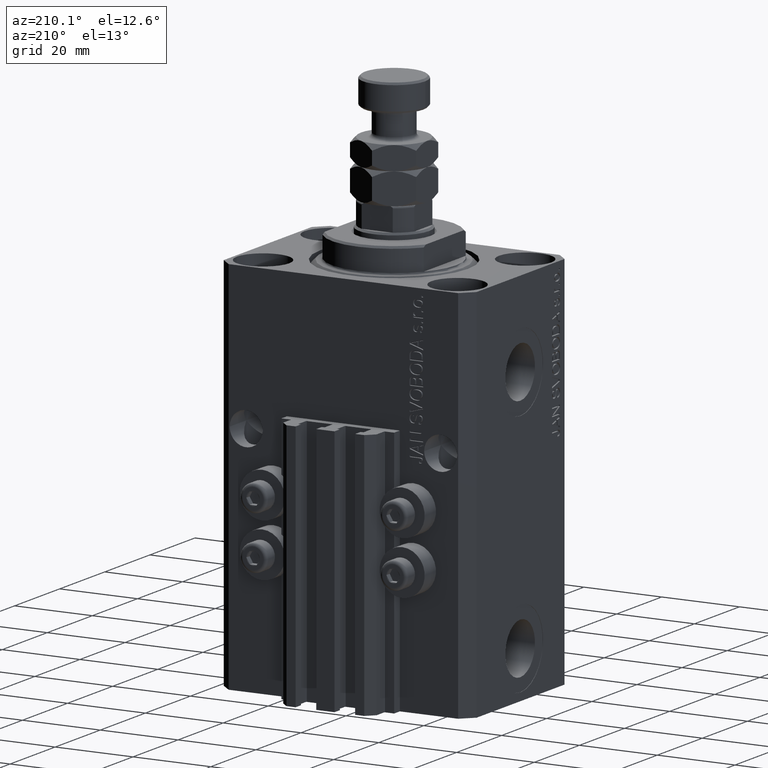
[diagram: clean part render]
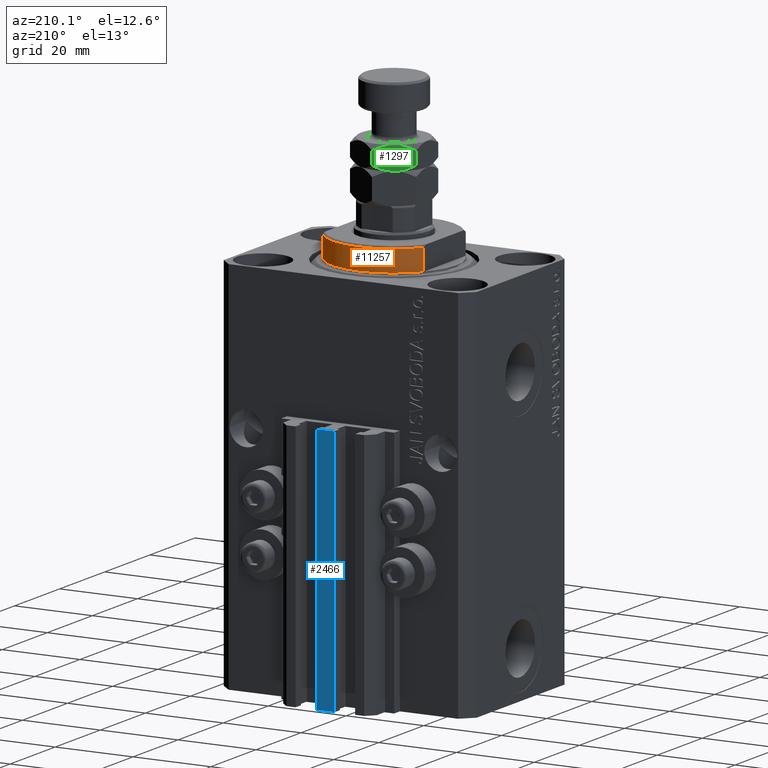
[diagram: same view with three faces highlighted in distinct colors, each labeled with its STEP entity id]
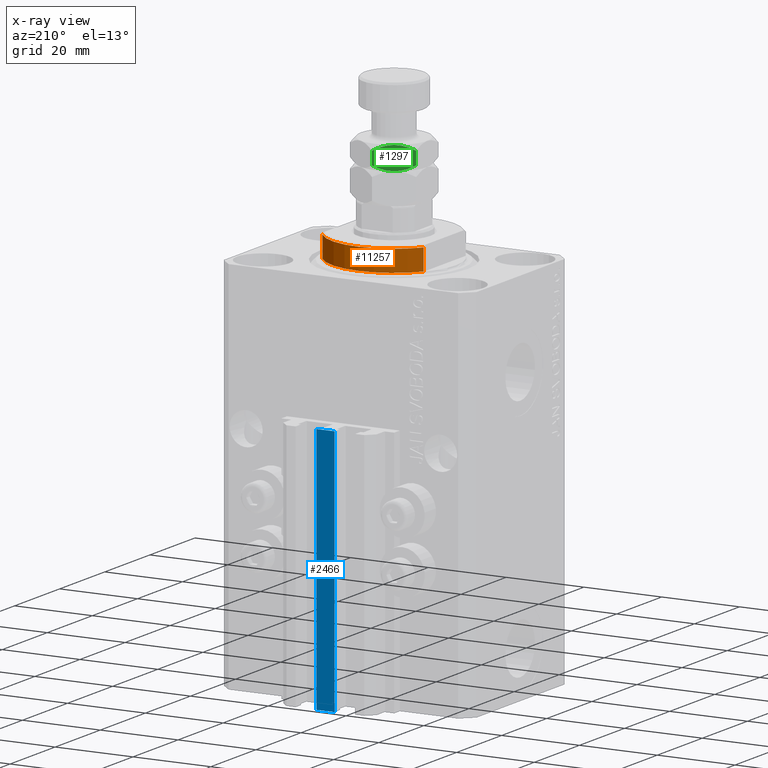
[diagram: x-ray of the same camera — body ghosted, the three highlighted faces saturated]
A machine part, auxiliary view with three faces highlighted in distinct colors.
The next image is the same camera in x-ray (body ghosted, the three faces saturated) — at least one of them is partly hidden behind the body in this view.
Their STEP definitions:

[orange] entity #11257 — the highlighted cylindrical surface (partial cylindrical patch) has radius 16 mm, axis along (0, 0, -1).
#420 = VERTEX_POINT ( 'NONE', #6584 ) ;
#3808 = CIRCLE ( 'NONE', #45608, 16.00000000000000000 ) ;
#4153 = CARTESIAN_POINT ( 'NONE',  ( -13.00000000000000000, 9.327379053088813876, -6.500000000000000000 ) ) ;
#4670 = CARTESIAN_POINT ( 'NONE',  ( -13.00000000000000000, 9.327379053088815652, -0.4999999999999995559 ) ) ;
#5188 = EDGE_CURVE ( 'NONE', #44451, #10162, #3808, .T. ) ;
#6218 = CARTESIAN_POINT ( 'NONE',  ( 13.00000000000000000, 9.327379053088916905, -6.000000000000014211 ) ) ;
#6584 = CARTESIAN_POINT ( 'NONE',  ( -13.00000000000000000, 9.327379053088916905, -6.000000000000014211 ) ) ;
#9665 = CIRCLE ( 'NONE', #45928, 16.00000000000000000 ) ;
#10162 = VERTEX_POINT ( 'NONE', #45714 ) ;
#10402 = FACE_OUTER_BOUND ( 'NONE', #31679, .T. ) ;
#11249 = VERTEX_POINT ( 'NONE', #6218 ) ;
#11257 = ADVANCED_FACE ( 'NONE', ( #10402 ), #25474, .T. ) ;
#12043 = DIRECTION ( 'NONE',  ( -0.000000000000000000, -0.000000000000000000, 1.000000000000000000 ) ) ;
#17253 = VECTOR ( 'NONE', #12043, 1000.000000000000000 ) ;
#18053 = DIRECTION ( 'NONE',  ( -0.000000000000000000, -0.000000000000000000, 1.000000000000000000 ) ) ;
#20066 = LINE ( 'NONE', #42528, #21469 ) ;
#20761 = EDGE_CURVE ( 'NONE', #11249, #10162, #20066, .T. ) ;
#21469 = VECTOR ( 'NONE', #42775, 1000.000000000000000 ) ;
#22242 = DIRECTION ( 'NONE',  ( 1.000000000000000000, 0.000000000000000000, 0.000000000000000000 ) ) ;
#22471 = EDGE_CURVE ( 'NONE', #11249, #420, #9665, .T. ) ;
#25474 = CYLINDRICAL_SURFACE ( 'NONE', #45030, 16.00000000000000000 ) ;
#26399 = ORIENTED_EDGE ( 'NONE', *, *, #40023, .T. ) ;
#27686 = DIRECTION ( 'NONE',  ( 0.000000000000000000, 0.000000000000000000, 1.000000000000000000 ) ) ;
#27939 = CARTESIAN_POINT ( 'NONE',  ( 0.000000000000000000, 0.000000000000000000, -6.000000000000023981 ) ) ;
#30498 = ORIENTED_EDGE ( 'NONE', *, *, #20761, .F. ) ;
#30636 = DIRECTION ( 'NONE',  ( 1.000000000000000000, -8.881784197001252323E-16, 0.000000000000000000 ) ) ;
#31679 = EDGE_LOOP ( 'NONE', ( #30498, #41690, #26399, #33000 ) ) ;
#33000 = ORIENTED_EDGE ( 'NONE', *, *, #5188, .T. ) ;
#33601 = DIRECTION ( 'NONE',  ( -0.000000000000000000, -0.000000000000000000, -1.000000000000000000 ) ) ;
#36580 = CARTESIAN_POINT ( 'NONE',  ( 0.000000000000000000, 0.000000000000000000, -6.500000000000000000 ) ) ;
#40023 = EDGE_CURVE ( 'NONE', #420, #44451, #41673, .T. ) ;
#41673 = LINE ( 'NONE', #4153, #17253 ) ;
#41690 = ORIENTED_EDGE ( 'NONE', *, *, #22471, .T. ) ;
#41726 = CARTESIAN_POINT ( 'NONE',  ( 0.000000000000000000, 0.000000000000000000, -0.4999999999999995559 ) ) ;
#42528 = CARTESIAN_POINT ( 'NONE',  ( 13.00000000000000000, 9.327379053088813876, -6.500000000000000000 ) ) ;
#42775 = DIRECTION ( 'NONE',  ( -0.000000000000000000, -0.000000000000000000, 1.000000000000000000 ) ) ;
#42980 = DIRECTION ( 'NONE',  ( -1.000000000000000000, 0.000000000000000000, 0.000000000000000000 ) ) ;
#44451 = VERTEX_POINT ( 'NONE', #4670 ) ;
#45030 = AXIS2_PLACEMENT_3D ( 'NONE', #36580, #18053, #22242 ) ;
#45608 = AXIS2_PLACEMENT_3D ( 'NONE', #41726, #33601, #30636 ) ;
#45714 = CARTESIAN_POINT ( 'NONE',  ( 13.00000000000000000, 9.327379053088815652, -0.4999999999999995559 ) ) ;
#45928 = AXIS2_PLACEMENT_3D ( 'NONE', #27939, #27686, #42980 ) ;

[blue] entity #2466 — the highlighted planar face has unit normal (0, -1, 0).
#890 = VECTOR ( 'NONE', #43488, 1000.000000000000000 ) ;
#962 = CARTESIAN_POINT ( 'NONE',  ( 2.349999999999999645, 30.49999999999949907, -33.00000000000000000 ) ) ;
#1634 = VERTEX_POINT ( 'NONE', #962 ) ;
#2256 = CARTESIAN_POINT ( 'NONE',  ( 2.349999999999999645, 30.49999999999949907, -97.00000000000000000 ) ) ;
#2466 = ADVANCED_FACE ( 'NONE', ( #22067 ), #34175, .F. ) ;
#4085 = VECTOR ( 'NONE', #10238, 1000.000000000000000 ) ;
#4772 = VERTEX_POINT ( 'NONE', #2256 ) ;
#5197 = ORIENTED_EDGE ( 'NONE', *, *, #47233, .F. ) ;
#5631 = CARTESIAN_POINT ( 'NONE',  ( -2.350000000000003197, 30.49999999999949907, -97.00000000000000000 ) ) ;
#7537 = VECTOR ( 'NONE', #41720, 1000.000000000000000 ) ;
#9227 = ORIENTED_EDGE ( 'NONE', *, *, #12739, .T. ) ;
#10238 = DIRECTION ( 'NONE',  ( 0.000000000000000000, 0.000000000000000000, 1.000000000000000000 ) ) ;
#11164 = EDGE_CURVE ( 'NONE', #23238, #1634, #28442, .T. ) ;
#12739 = EDGE_CURVE ( 'NONE', #26710, #23238, #39438, .T. ) ;
#18864 = DIRECTION ( 'NONE',  ( 0.000000000000000000, -1.000000000000000000, 0.000000000000000000 ) ) ;
#19739 = LINE ( 'NONE', #30870, #7537 ) ;
#19781 = EDGE_LOOP ( 'NONE', ( #21950, #5197, #36456, #9227 ) ) ;
#21950 = ORIENTED_EDGE ( 'NONE', *, *, #11164, .T. ) ;
#22067 = FACE_OUTER_BOUND ( 'NONE', #19781, .T. ) ;
#23238 = VERTEX_POINT ( 'NONE', #26298 ) ;
#26298 = CARTESIAN_POINT ( 'NONE',  ( -2.350000000000003197, 30.49999999999949907, -33.00000000000000000 ) ) ;
#26525 = CARTESIAN_POINT ( 'NONE',  ( -2.350000000000003197, 30.49999999999949907, -97.00000000000000000 ) ) ;
#26710 = VERTEX_POINT ( 'NONE', #28224 ) ;
#28224 = CARTESIAN_POINT ( 'NONE',  ( -2.350000000000003197, 30.49999999999949907, -97.00000000000000000 ) ) ;
#28442 = LINE ( 'NONE', #43007, #890 ) ;
#29502 = CARTESIAN_POINT ( 'NONE',  ( 2.349999999999999645, 30.49999999999949907, -97.00000000000000000 ) ) ;
#30870 = CARTESIAN_POINT ( 'NONE',  ( -2.350000000000003197, 30.49999999999949907, -97.00000000000000000 ) ) ;
#31561 = DIRECTION ( 'NONE',  ( 0.000000000000000000, 0.000000000000000000, 1.000000000000000000 ) ) ;
#32469 = EDGE_CURVE ( 'NONE', #26710, #4772, #19739, .T. ) ;
#33969 = VECTOR ( 'NONE', #31561, 1000.000000000000000 ) ;
#34175 = PLANE ( 'NONE',  #38446 ) ;
#36456 = ORIENTED_EDGE ( 'NONE', *, *, #32469, .F. ) ;
#38446 = AXIS2_PLACEMENT_3D ( 'NONE', #26525, #18864, #48493 ) ;
#39438 = LINE ( 'NONE', #5631, #33969 ) ;
#41720 = DIRECTION ( 'NONE',  ( 1.000000000000000000, 0.000000000000000000, 0.000000000000000000 ) ) ;
#43007 = CARTESIAN_POINT ( 'NONE',  ( -2.350000000000003197, 30.49999999999949907, -33.00000000000000000 ) ) ;
#43488 = DIRECTION ( 'NONE',  ( 1.000000000000000000, 0.000000000000000000, 0.000000000000000000 ) ) ;
#43811 = LINE ( 'NONE', #29502, #4085 ) ;
#47233 = EDGE_CURVE ( 'NONE', #4772, #1634, #43811, .T. ) ;
#48493 = DIRECTION ( 'NONE',  ( 0.000000000000000000, -0.000000000000000000, -1.000000000000000000 ) ) ;

[green] entity #1297 — the highlighted planar face has unit normal (0.5, -0.866, 0).
#404 = CARTESIAN_POINT ( 'NONE',  ( -7.151994807070138016, 5.685748449118881886, 8.603209212420120267 ) ) ;
#530 = VERTEX_POINT ( 'NONE', #48774 ) ;
#1297 = ADVANCED_FACE ( 'NONE', ( #4336 ), #7320, .F. ) ;
#1359 = AXIS2_PLACEMENT_3D ( 'NONE', #18428, #33491, #22364 ) ;
#2311 = B_SPLINE_CURVE_WITH_KNOTS ( 'NONE', 3,
 ( #47189, #46953, #13130, #28431, #47920, #21742, #29653, #44461 ),
 .UNSPECIFIED., .F., .F.,
 ( 4, 2, 2, 4 ),
 ( 2.544313836661324615E-07, 0.002543776790731952335, 0.003815537970406096113, 0.005087299150080239023 ),
 .UNSPECIFIED. ) ;
#4100 = CARTESIAN_POINT ( 'NONE',  ( -5.733718739115167828, 6.504590518737891180, 8.160821707941829928 ) ) ;
#4307 = CARTESIAN_POINT ( 'NONE',  ( -8.499999999999994671, 4.907477288111815383, 12.68504542377636923 ) ) ;
#4336 = FACE_OUTER_BOUND ( 'NONE', #32291, .T. ) ;
#6233 = CARTESIAN_POINT ( 'NONE',  ( -2.175848833159079736E-16, 9.814954576223636096, 14.00000000000000000 ) ) ;
#6325 = EDGE_CURVE ( 'NONE', #7510, #36597, #46073, .T. ) ;
#7320 = PLANE ( 'NONE',  #1359 ) ;
#7510 = VERTEX_POINT ( 'NONE', #12728 ) ;
#9608 = ORIENTED_EDGE ( 'NONE', *, *, #26136, .T. ) ;
#10354 = EDGE_CURVE ( 'NONE', #530, #38316, #2311, .T. ) ;
#10419 = DIRECTION ( 'NONE',  ( -0.000000000000000000, -0.000000000000000000, -1.000000000000000000 ) ) ;
#11501 = CARTESIAN_POINT ( 'NONE',  ( -6.092930036521915227, 6.297199779484147442, 8.253624089324654634 ) ) ;
#12336 = ORIENTED_EDGE ( 'NONE', *, *, #38401, .F. ) ;
#12728 = CARTESIAN_POINT ( 'NONE',  ( -4.249999999999994671, 7.361215932167727516, 8.000000000000000000 ) ) ;
#13028 = CARTESIAN_POINT ( 'NONE',  ( -2.784079206026080833, 8.207565697179237674, 8.130520287383214750 ) ) ;
#13130 = CARTESIAN_POINT ( 'NONE',  ( -1.348005192929857543, 9.036683415216568704, 13.39679078757987085 ) ) ;
#13394 = ORIENTED_EDGE ( 'NONE', *, *, #25701, .F. ) ;
#15322 = LINE ( 'NONE', #19510, #29885 ) ;
#15370 = CARTESIAN_POINT ( 'NONE',  ( -4.989245346831673089, 6.934412432177277097, 14.00000000000000000 ) ) ;
#16366 = VERTEX_POINT ( 'NONE', #4307 ) ;
#18428 = CARTESIAN_POINT ( 'NONE',  ( -2.175848833159079736E-16, 9.814954576223636096, 14.00000000000000000 ) ) ;
#19038 = VERTEX_POINT ( 'NONE', #34750 ) ;
#19164 = CARTESIAN_POINT ( 'NONE',  ( -4.622229978650551629, 7.146308853793378546, 7.999999999999996447 ) ) ;
#19510 = CARTESIAN_POINT ( 'NONE',  ( -8.499999999999994671, 4.907477288111815383, 14.00000000000000000 ) ) ;
#19638 = CARTESIAN_POINT ( 'NONE',  ( -7.833539178395713343, 5.292258622869389306, 8.930173241466055956 ) ) ;
#20127 = CARTESIAN_POINT ( 'NONE',  ( -4.249999999999994671, 7.361215932167727516, 8.000000000000000000 ) ) ;
#20530 = CARTESIAN_POINT ( 'NONE',  ( -7.834310611062746510, 5.291813236011414290, 13.06938137167606939 ) ) ;
#21742 = CARTESIAN_POINT ( 'NONE',  ( -3.499970675361010031, 7.794245564648159430, 13.96626325040163330 ) ) ;
#22255 = LINE ( 'NONE', #6233, #25593 ) ;
#22364 = DIRECTION ( 'NONE',  ( 0.8660254037844383745, 0.5000000000000003331, 0.000000000000000000 ) ) ;
#23318 = B_SPLINE_CURVE_WITH_KNOTS ( 'NONE', 3,
 ( #30283, #19638, #404, #11501, #4100, #38641, #19164, #20127 ),
 .UNSPECIFIED., .F., .F.,
 ( 4, 2, 2, 4 ),
 ( 2.544313836655798784E-07, 0.002543776790731952769, 0.003815537970406096546, 0.005087299150080239890 ),
 .UNSPECIFIED. ) ;
#23407 = CARTESIAN_POINT ( 'NONE',  ( -3.510754653168321138, 7.788019432158173494, 8.000000000000000000 ) ) ;
#24966 = CARTESIAN_POINT ( 'NONE',  ( -4.518323438531710351E-16, 9.814954576223636096, 9.314954576223632543 ) ) ;
#25593 = VECTOR ( 'NONE', #10419, 1000.000000000000000 ) ;
#25701 = EDGE_CURVE ( 'NONE', #19038, #7510, #23318, .T. ) ;
#26136 = EDGE_CURVE ( 'NONE', #530, #36597, #22255, .T. ) ;
#27128 = CARTESIAN_POINT ( 'NONE',  ( -1.350892646810551767, 9.035016342941274203, 8.600938412736123695 ) ) ;
#27364 = CARTESIAN_POINT ( 'NONE',  ( -4.249999999999994671, 7.361215932167727516, 8.000000000000000000 ) ) ;
#28431 = CARTESIAN_POINT ( 'NONE',  ( -2.407069963478079000, 8.425232084851300485, 13.74637591067534181 ) ) ;
#28680 = CARTESIAN_POINT ( 'NONE',  ( -8.499999999999994671, 4.907477288111815383, 12.68504542377636923 ) ) ;
#29653 = CARTESIAN_POINT ( 'NONE',  ( -3.877770021349440821, 7.576123010542071157, 13.99999999999999289 ) ) ;
#29885 = VECTOR ( 'NONE', #30639, 1000.000000000000000 ) ;
#30283 = CARTESIAN_POINT ( 'NONE',  ( -8.499999999999994671, 4.907477288111815383, 9.314954576223630767 ) ) ;
#30639 = DIRECTION ( 'NONE',  ( -0.000000000000000000, -0.000000000000000000, -1.000000000000000000 ) ) ;
#32291 = EDGE_LOOP ( 'NONE', ( #13394, #33087, #12336, #39007, #9608, #42470 ) ) ;
#33087 = ORIENTED_EDGE ( 'NONE', *, *, #39720, .F. ) ;
#33491 = DIRECTION ( 'NONE',  ( 0.5000000000000004441, -0.8660254037844384856, 0.000000000000000000 ) ) ;
#34750 = CARTESIAN_POINT ( 'NONE',  ( -8.499999999999994671, 4.907477288111815383, 9.314954576223630767 ) ) ;
#35501 = CARTESIAN_POINT ( 'NONE',  ( -4.518323438531710351E-16, 9.814954576223636096, 9.314954576223632543 ) ) ;
#36597 = VERTEX_POINT ( 'NONE', #24966 ) ;
#38082 = CARTESIAN_POINT ( 'NONE',  ( -5.715920793973914726, 6.514866167156213805, 13.86947971261678703 ) ) ;
#38199 = B_SPLINE_CURVE_WITH_KNOTS ( 'NONE', 3,
 ( #41780, #15370, #38082, #47188, #20530, #28680 ),
 .UNSPECIFIED., .F., .F.,
 ( 4, 2, 4 ),
 ( 0.005087299150080239023, 0.007613005268011858312, 0.01013871138594347673 ),
 .UNSPECIFIED. ) ;
#38316 = VERTEX_POINT ( 'NONE', #42264 ) ;
#38401 = EDGE_CURVE ( 'NONE', #38316, #16366, #38199, .T. ) ;
#38641 = CARTESIAN_POINT ( 'NONE',  ( -5.000029324638983752, 6.928186299687294714, 8.033736749598364923 ) ) ;
#38699 = CARTESIAN_POINT ( 'NONE',  ( -0.6656893889372517137, 9.430618628324037189, 8.930618628323932384 ) ) ;
#39007 = ORIENTED_EDGE ( 'NONE', *, *, #10354, .F. ) ;
#39720 = EDGE_CURVE ( 'NONE', #16366, #19038, #15322, .T. ) ;
#41780 = CARTESIAN_POINT ( 'NONE',  ( -4.250000000000000000, 7.361215932167723963, 14.00000000000000000 ) ) ;
#42264 = CARTESIAN_POINT ( 'NONE',  ( -4.250000000000000000, 7.361215932167723963, 14.00000000000000000 ) ) ;
#42470 = ORIENTED_EDGE ( 'NONE', *, *, #6325, .F. ) ;
#44461 = CARTESIAN_POINT ( 'NONE',  ( -4.250000000000000000, 7.361215932167723963, 14.00000000000000000 ) ) ;
#46073 = B_SPLINE_CURVE_WITH_KNOTS ( 'NONE', 3,
 ( #27364, #23407, #13028, #27128, #38699, #35501 ),
 .UNSPECIFIED., .F., .F.,
 ( 4, 2, 4 ),
 ( 0.005087299150080239890, 0.007613005268011858312, 0.01013871138594347673 ),
 .UNSPECIFIED. ) ;
#46953 = CARTESIAN_POINT ( 'NONE',  ( -0.6664608216042852140, 9.430173241466061285, 13.06982675853394049 ) ) ;
#47188 = CARTESIAN_POINT ( 'NONE',  ( -7.149107353189442016, 5.687415521394174611, 13.39906158726387986 ) ) ;
#47189 = CARTESIAN_POINT ( 'NONE',  ( -4.351697665308417514E-16, 9.814954576223636096, 12.68504542377636746 ) ) ;
#47920 = CARTESIAN_POINT ( 'NONE',  ( -2.766281260884828175, 8.217841345597564739, 13.83917829205816830 ) ) ;
#48774 = CARTESIAN_POINT ( 'NONE',  ( -4.351697665308417514E-16, 9.814954576223636096, 12.68504542377636746 ) ) ;